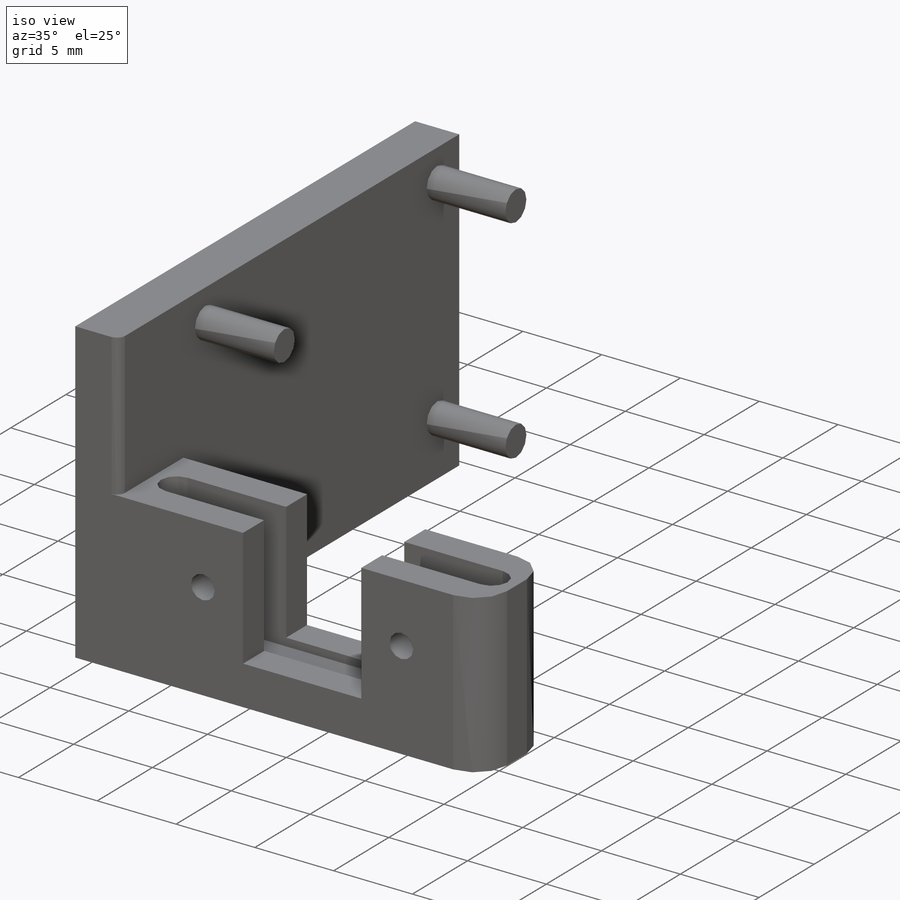
[diagram: iso view]
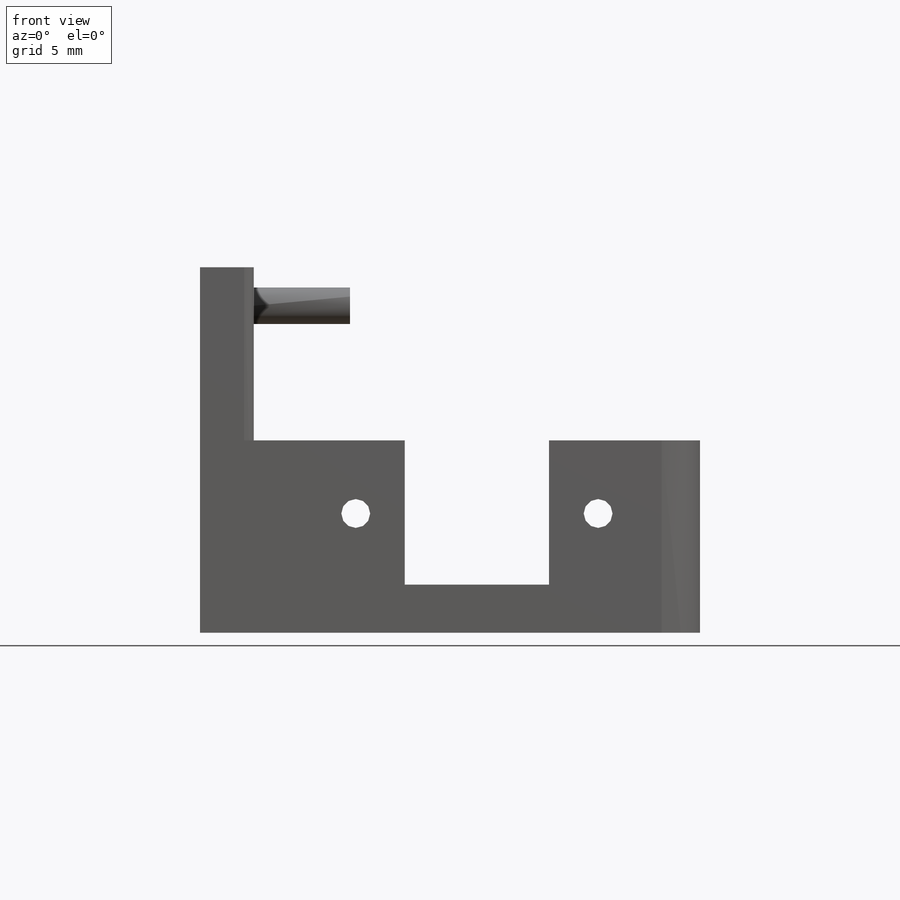
[diagram: front view]
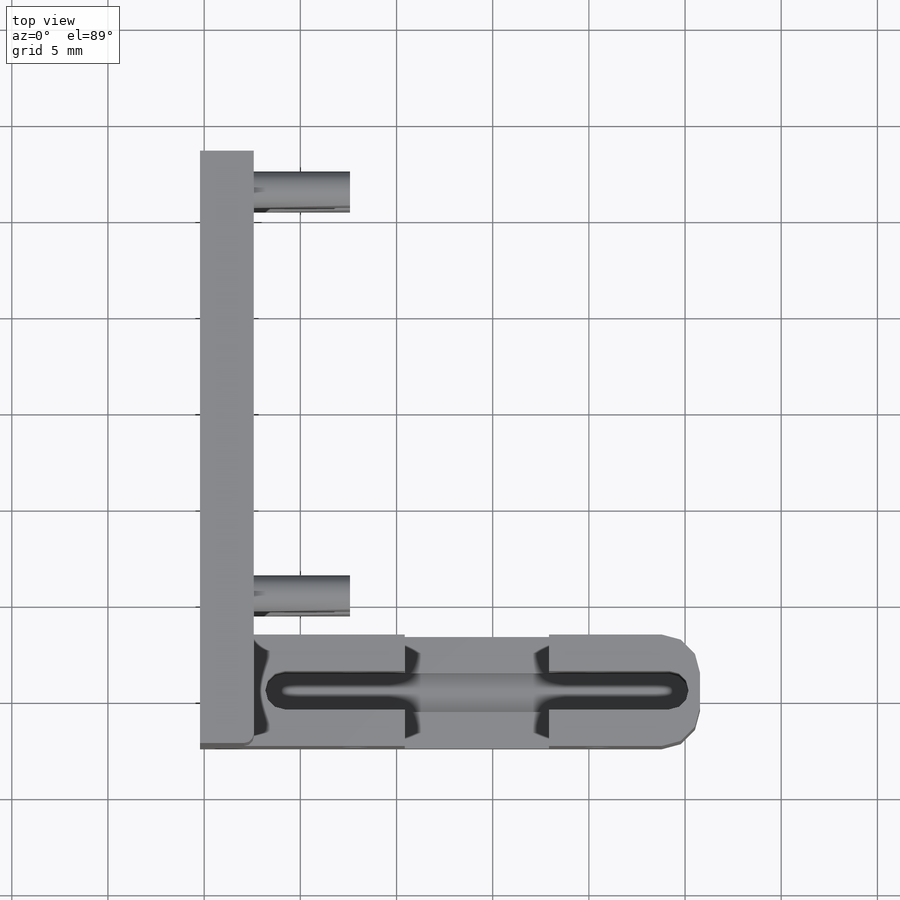
[diagram: top view]
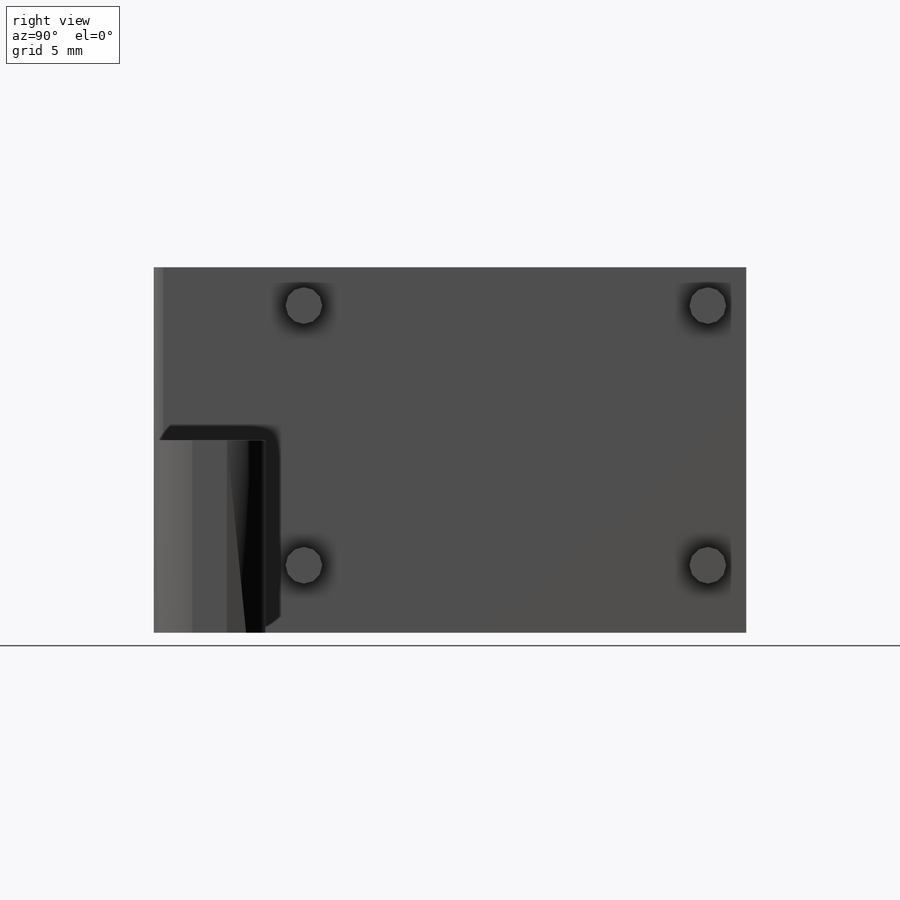
[diagram: right view]
SOLIDWORKS PART (.sldprt)
format: sldprt  version: not decoded by parser v0  size: 304,640 bytes
history: native  units: mm
features: sketch x6, cut_extrude x4, plane x3, extrude x2, fillet x2, material x1 (+10 scaffold rows collapsed)
feature tree (28):
  scaffold x10  (default folders/planes/origin — collapsed)
  material  "材质 <未指定>"
  plane  "前视"
  plane  "上视"
  plane  "右视"
  sketch  "草图1"  dims[D1=5.8mm D2=26.0mm D3=30.8mm D4=2.8mm D5=23.2mm]
  extrude  "凸台-拉伸1"  Depth=19mm
  sketch  "草图3"  dims[D1=23.2mm D2=9.0mm]
  cut_extrude  "切除-拉伸2"  [1 undecoded]
  sketch  "草图4"  dims[c1.D2=~0.842832mm c1.D3=~0.913298mm c1.D1=2.9mm c2.D2=20.0mm c2.D1=2.9mm c3.D2=11.6mm c3.D3=20.0mm]
  cut_extrude  "切除-拉伸3"  Depth=8mm
  sketch  "草图5"  dims[D1=7.5mm D2=11.6mm D3=7.5mm]
  cut_extrude  "切除-拉伸4"  [1 undecoded]
  sketch  "草图7"  dims[D1=1.5mm D2=1.5mm D3=2.55mm D4=2.55mm D5=3.8mm D6=3.8mm]
  cut_extrude  "切除-拉伸6"  [1 undecoded]
  fillet  "圆角3"  Radius=2mm
  fillet  "圆角4"  Radius=0.5mm
  sketch  "草图8"  dims[D1=1.9mm D2=1.9mm D3=1.9mm D4=1.9mm D5=2.0mm D6=2.0mm D7=2.0mm D8=13.5mm D9=2.0mm D10=13.5mm D11=21.0mm D12=21.0mm]
  extrude  "凸台-拉伸2"  Depth=5mm
decode coverage: 11 of 14 modeling features carry decoded parameters
note: ~ marks probable driven/reference dimensions
note: 3 parameter values undecoded
summary: no parameter record found for 3 features
note: suppression state not decoded; provenance and decode notes live in map.json
